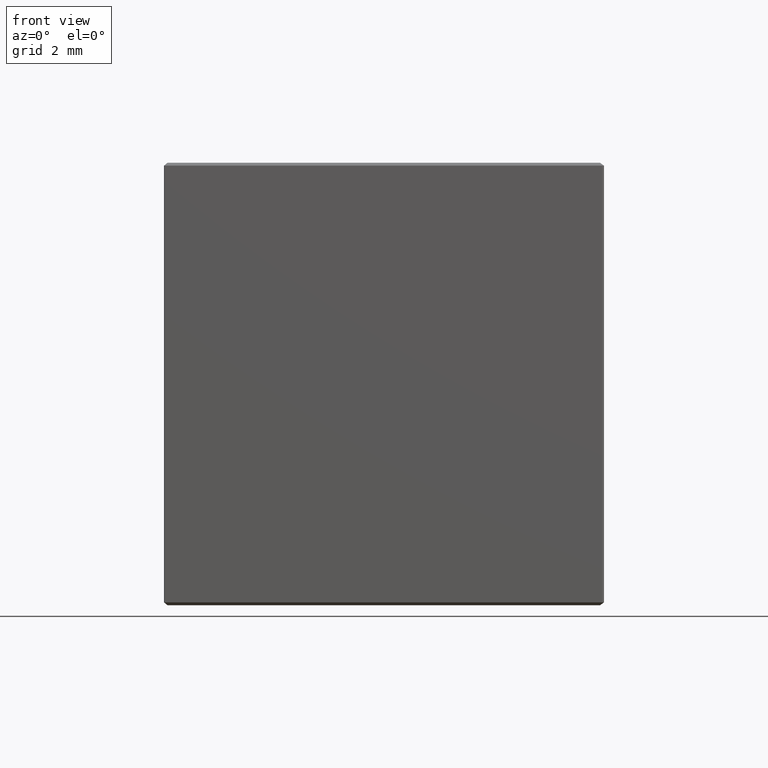
[diagram: clean part render]
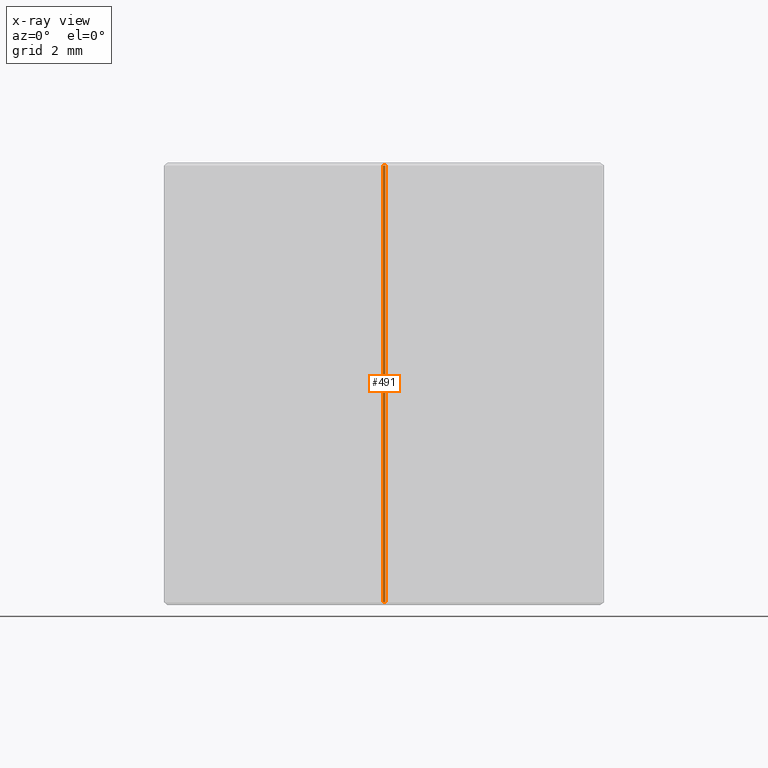
[diagram: x-ray — body ghosted, one internal face saturated and labeled with its STEP entity id]
A machine part, front view, then the same camera in x-ray: the body is ghosted and one INTERNAL B-rep face — a face not visible from any outside direction — is saturated and labeled: STEP entity #491.
In plain terms, the highlighted planar face has unit normal (-0.2588, -0.9659, -0).
Its self-contained STEP definition (entity closure, byte-faithful):
#6 = EDGE_CURVE ( 'NONE', #84, #376, #381, .T. ) ;
#13 = EDGE_CURVE ( 'NONE', #156, #228, #343, .T. ) ;
#15 = DIRECTION ( 'NONE',  ( -0.2588190451025133010, -0.9659258262890703106, -0.000000000000000000 ) ) ;
#22 = CARTESIAN_POINT ( 'NONE',  ( -0.03660254037844470204, -0.06339745962155758641, 15.00000000000000000 ) ) ;
#38 = PLANE ( 'NONE',  #152 ) ;
#64 = DIRECTION ( 'NONE',  ( 0.000000000000000000, 0.000000000000000000, -1.000000000000000000 ) ) ;
#66 = DIRECTION ( 'NONE',  ( 0.9659258262890703106, -0.2588190451025133565, 5.762713770593356352E-16 ) ) ;
#84 = VERTEX_POINT ( 'NONE', #484 ) ;
#112 = CARTESIAN_POINT ( 'NONE',  ( -0.03660254037844470204, -0.06339745962155758641, 0.1000000000000006301 ) ) ;
#121 = VECTOR ( 'NONE', #377, 1000.000000000000000 ) ;
#138 = EDGE_LOOP ( 'NONE', ( #407, #306, #274, #328 ) ) ;
#152 = AXIS2_PLACEMENT_3D ( 'NONE', #280, #15, #436 ) ;
#156 = VERTEX_POINT ( 'NONE', #271 ) ;
#177 = EDGE_CURVE ( 'NONE', #156, #376, #458, .T. ) ;
#181 = CARTESIAN_POINT ( 'NONE',  ( 0.05000000000000061340, -0.08660254037844491992, 14.90000000000000391 ) ) ;
#227 = VECTOR ( 'NONE', #66, 1000.000000000000114 ) ;
#228 = VERTEX_POINT ( 'NONE', #112 ) ;
#233 = LINE ( 'NONE', #316, #261 ) ;
#246 = EDGE_CURVE ( 'NONE', #84, #228, #233, .T. ) ;
#261 = VECTOR ( 'NONE', #404, 1000.000000000000114 ) ;
#265 = CARTESIAN_POINT ( 'NONE',  ( 0.05000000000000056483, -0.08660254037844497543, 15.00000000000000000 ) ) ;
#267 = VECTOR ( 'NONE', #64, 1000.000000000000000 ) ;
#271 = CARTESIAN_POINT ( 'NONE',  ( -0.03660254037844470204, -0.06339745962155758641, 14.90000000000000391 ) ) ;
#274 = ORIENTED_EDGE ( 'NONE', *, *, #246, .T. ) ;
#278 = CARTESIAN_POINT ( 'NONE',  ( 0.05000000000000061340, -0.08660254037844491992, 14.90000000000000391 ) ) ;
#280 = CARTESIAN_POINT ( 'NONE',  ( -0.03660254037844470204, -0.06339745962155758641, 15.00000000000000000 ) ) ;
#289 = FACE_OUTER_BOUND ( 'NONE', #138, .T. ) ;
#306 = ORIENTED_EDGE ( 'NONE', *, *, #6, .F. ) ;
#316 = CARTESIAN_POINT ( 'NONE',  ( -0.03660254037844470204, -0.06339745962155758641, 0.1000000000000006301 ) ) ;
#328 = ORIENTED_EDGE ( 'NONE', *, *, #13, .F. ) ;
#343 = LINE ( 'NONE', #22, #267 ) ;
#376 = VERTEX_POINT ( 'NONE', #181 ) ;
#377 = DIRECTION ( 'NONE',  ( 0.000000000000000000, 0.000000000000000000, 1.000000000000000000 ) ) ;
#381 = LINE ( 'NONE', #265, #121 ) ;
#404 = DIRECTION ( 'NONE',  ( -0.9659258262890703106, 0.2588190451025133010, 1.432351769963625949E-14 ) ) ;
#407 = ORIENTED_EDGE ( 'NONE', *, *, #177, .T. ) ;
#436 = DIRECTION ( 'NONE',  ( 0.000000000000000000, 0.000000000000000000, -1.000000000000000000 ) ) ;
#458 = LINE ( 'NONE', #278, #227 ) ;
#484 = CARTESIAN_POINT ( 'NONE',  ( 0.05000000000000061340, -0.08660254037844491992, 0.09999999999999939493 ) ) ;
#491 = ADVANCED_FACE ( 'NONE', ( #289 ), #38, .F. ) ;